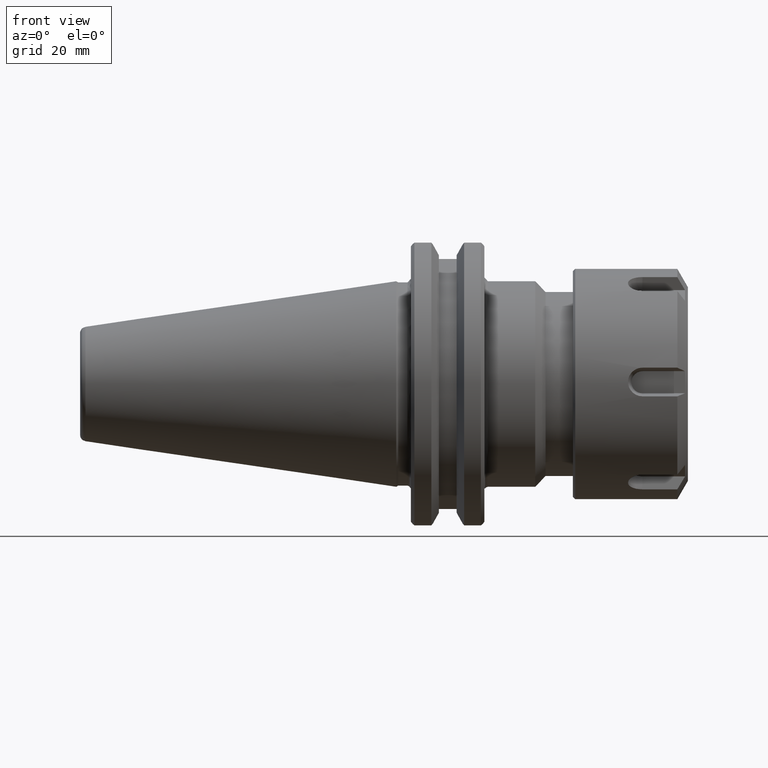
[diagram: clean part render]
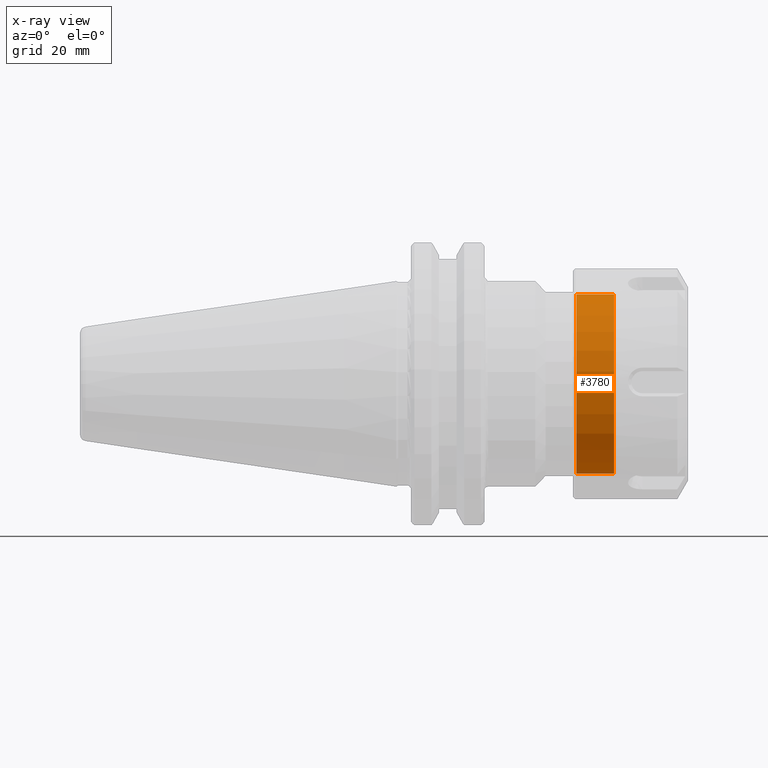
[diagram: x-ray — body ghosted, one internal face saturated and labeled with its STEP entity id]
A machine part, front view, then the same camera in x-ray: the body is ghosted and one INTERNAL B-rep face — a face not visible from any outside direction — is saturated and labeled: STEP entity #3780.
In plain terms, the highlighted cylindrical surface (bore or boss wall) has radius 19.3421 mm, axis along (-1, 0, -0).
Its self-contained STEP definition (entity closure, byte-faithful):
#3749=CARTESIAN_POINT('',(0.948,0.7615,-9.325377E-017));
#3750=VERTEX_POINT('',#3749);
#3751=CARTESIAN_POINT('',(0.948,0.0,0.0));
#3752=DIRECTION('',(-1.0,0.0,0.0));
#3753=DIRECTION('',(0.0,-1.0,0.0));
#3754=AXIS2_PLACEMENT_3D('',#3751,#3752,#3753);
#3755=CIRCLE('',#3754,0.7615);
#3756=EDGE_CURVE('',#3750,#3750,#3755,.T.);
#3761=CARTESIAN_POINT('',(0.803,0.0,0.0));
#3762=DIRECTION('',(1.0,0.0,0.0));
#3763=DIRECTION('',(0.0,1.0,0.0));
#3764=AXIS2_PLACEMENT_3D('',#3761,#3762,#3763);
#3765=CYLINDRICAL_SURFACE('',#3764,0.7615);
#3766=CARTESIAN_POINT('',(0.628,0.7615,0.0));
#3767=VERTEX_POINT('',#3766);
#3768=CARTESIAN_POINT('',(0.628,0.0,0.0));
#3769=DIRECTION('',(1.0,0.0,0.0));
#3770=DIRECTION('',(0.0,1.0,0.0));
#3771=AXIS2_PLACEMENT_3D('',#3768,#3769,#3770);
#3772=CIRCLE('',#3771,0.7615);
#3773=EDGE_CURVE('',#3767,#3767,#3772,.T.);
#3774=ORIENTED_EDGE('',*,*,#3773,.F.);
#3775=EDGE_LOOP('',(#3774));
#3776=FACE_OUTER_BOUND('',#3775,.T.);
#3777=ORIENTED_EDGE('',*,*,#3756,.F.);
#3778=EDGE_LOOP('',(#3777));
#3779=FACE_BOUND('',#3778,.T.);
#3780=ADVANCED_FACE('',(#3776,#3779),#3765,.F.);